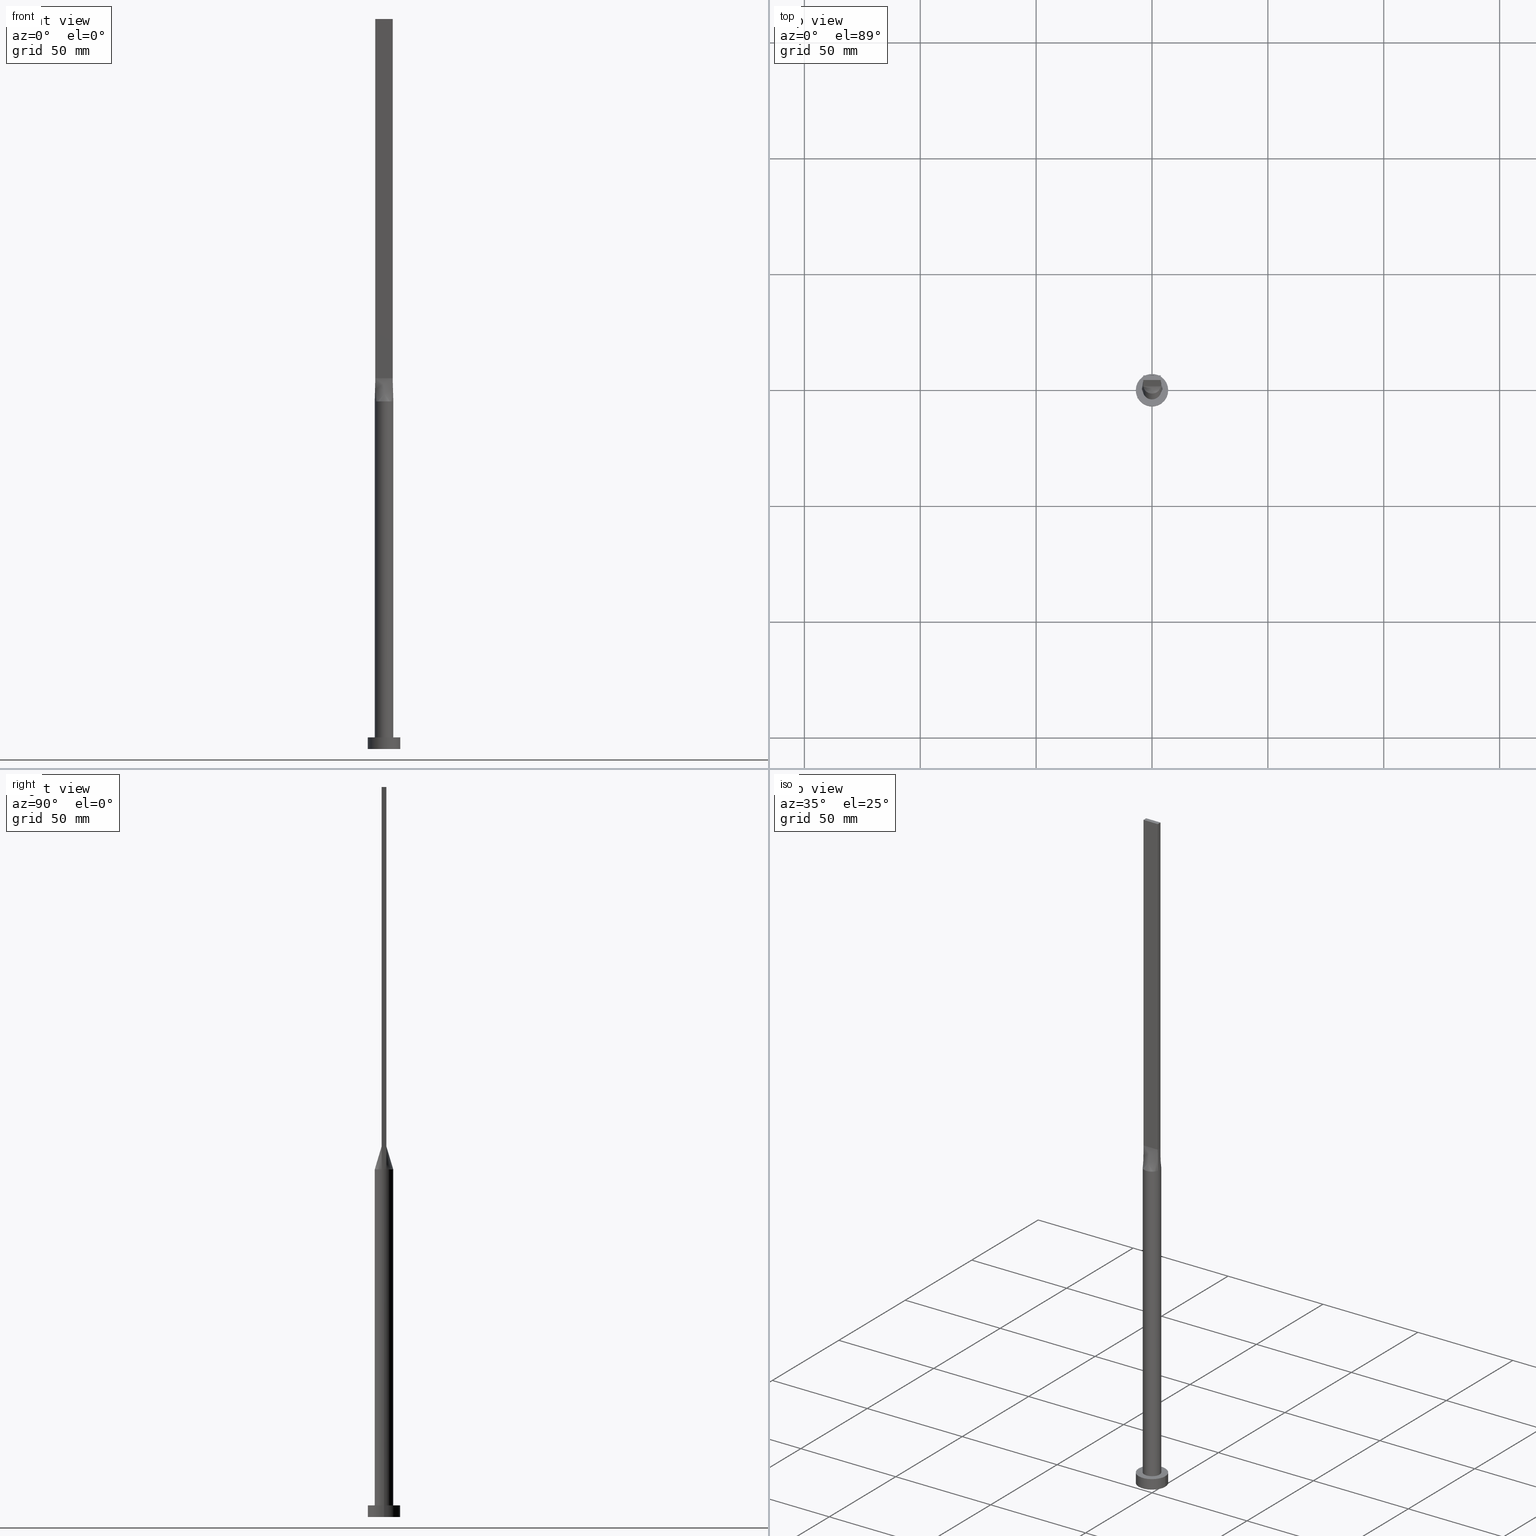
[diagram: canonical four-view strip — front | top / right | iso, engineering-drawing reading convention]
A machine part, canonical four-view strip (front | top / right | iso — engineering-drawing reading convention). The complete STEP part file that produces these views, byte-faithful:
ISO-10303-21;
HEADER;
FILE_DESCRIPTION (( 'STEP AP203' ),
    '1' );
FILE_NAME ('1984.STEP',
    '2026-02-12T09:02:59',
    ( '' ),
    ( '' ),
    'SwSTEP 2.0',
    'SolidWorks 2019',
    '' );
FILE_SCHEMA (( 'CONFIG_CONTROL_DESIGN' ));
ENDSEC;

DATA;
#1 = CARTESIAN_POINT ( 'NONE',  ( 2.499999999999988898, -0.9999999999999995559, 159.9999999999999716 ) ) ;
#2 = CARTESIAN_POINT ( 'NONE',  ( 3.781952206537765981, -1.341853921743404232, 150.0000000000000000 ) ) ;
#3 = EDGE_CURVE ( 'NONE', #221, #506, #572, .T. ) ;
#4 = FACE_OUTER_BOUND ( 'NONE', #327, .T. ) ;
#5 = COORDINATED_UNIVERSAL_TIME_OFFSET ( 1, 0, .AHEAD. ) ;
#6 = VECTOR ( 'NONE', #393, 1000.000000000000114 ) ;
#7 = DATE_AND_TIME ( #366, #425 ) ;
#8 = ORIENTED_EDGE ( 'NONE', *, *, #406, .F. ) ;
#9 = DIRECTION ( 'NONE',  ( -0.000000000000000000, -0.000000000000000000, -1.000000000000000000 ) ) ;
#10 = VECTOR ( 'NONE', #9, 1000.000000000000000 ) ;
#11 = ORIENTED_EDGE ( 'NONE', *, *, #489, .T. ) ;
#12 = DIRECTION ( 'NONE',  ( 0.000000000000000000, -0.000000000000000000, -1.000000000000000000 ) ) ;
#13 = ORIENTED_EDGE ( 'NONE', *, *, #375, .T. ) ;
#14 = PLANE ( 'NONE',  #206 ) ;
#15 = VERTEX_POINT ( 'NONE', #23 ) ;
#16 = DIRECTION ( 'NONE',  ( 0.000000000000000000, 0.000000000000000000, 1.000000000000000000 ) ) ;
#17 = CC_DESIGN_APPROVAL ( #79, ( #212 ) ) ;
#18 = ORIENTED_EDGE ( 'NONE', *, *, #275, .F. ) ;
#19 = CARTESIAN_POINT ( 'NONE',  ( -2.187500000000000444, 1.000000000000000000, 159.9999999999999716 ) ) ;
#20 = VECTOR ( 'NONE', #167, 1000.000000000000000 ) ;
#21 = EDGE_CURVE ( 'NONE', #525, #423, #528, .T. ) ;
#22 = CYLINDRICAL_SURFACE ( 'NONE', #196, 7.000000000000000000 ) ;
#23 = CARTESIAN_POINT ( 'NONE',  ( 3.750000000000000000, 1.000000000000000000, 160.0000000000000000 ) ) ;
#24 = CARTESIAN_POINT ( 'NONE',  ( 3.124999999999999112, 1.000000000000000000, 159.9999999999999716 ) ) ;
#25 = DIRECTION ( 'NONE',  ( 1.000000000000000000, 0.000000000000000000, 0.000000000000000000 ) ) ;
#26 = CARTESIAN_POINT ( 'NONE',  ( -3.864939758404985604, -1.030650602241328428, 150.0000000000000000 ) ) ;
#27 = CARTESIAN_POINT ( 'NONE',  ( -1.562500000000000444, 1.000000000000000000, 159.9999999999999716 ) ) ;
#28 = CARTESIAN_POINT ( 'NONE',  ( -1.940702937457743138, 3.532374760555930582, 149.9999999999999716 ) ) ;
#29 = CARTESIAN_POINT ( 'NONE',  ( -3.749999999999999556, 0.6666666666666669627, 159.9999999999999716 ) ) ;
#30 = CARTESIAN_POINT ( 'NONE',  ( 3.267840578657193795, 2.338604872288698289, 149.9999999999999432 ) ) ;
#31 = CIRCLE ( 'NONE', #465, 7.000000000000000000 ) ;
#32 = B_SPLINE_SURFACE_WITH_KNOTS ( 'NONE', 3, 1, ( 
 ( #501, #105 ),
 ( #547, #279 ),
 ( #141, #515 ),
 ( #231, #415 ),
 ( #512, #273 ),
 ( #315, #152 ) ),
 .UNSPECIFIED., .F., .F., .F.,
 ( 4, 2, 4 ),
 ( 2, 2 ),
 ( 0.000000000000000000, 0.5000000000000000000, 1.000000000000000000 ),
 ( 0.000000000000000000, 1.000000000000000000 ),
 .UNSPECIFIED. ) ;
#33 = FACE_OUTER_BOUND ( 'NONE', #467, .T. ) ;
#34 = PERSON_AND_ORGANIZATION ( #558, #417 ) ;
#35 = CARTESIAN_POINT ( 'NONE',  ( 1.940702937457743582, 3.532374760555930582, 149.9999999999999716 ) ) ;
#36 = CARTESIAN_POINT ( 'NONE',  ( 7.000000000000000000, 8.572527594031473190E-16, 0.000000000000000000 ) ) ;
#37 = CARTESIAN_POINT ( 'NONE',  ( -3.750000000000000000, -0.9999999999999991118, 315.0000000000000000 ) ) ;
#38 = APPROVAL_DATE_TIME ( #445, #79 ) ;
#39 = CARTESIAN_POINT ( 'NONE',  ( -1.250000000000017764, -0.9999999999999993339, 159.9999999999999716 ) ) ;
#40 = ORIENTED_EDGE ( 'NONE', *, *, #21, .F. ) ;
#41 = AXIS2_PLACEMENT_3D ( 'NONE', #195, #405, #12 ) ;
#42 = EDGE_CURVE ( 'NONE', #63, #143, #276, .T. ) ;
#43 = DIRECTION ( 'NONE',  ( 0.000000000000000000, 0.000000000000000000, 1.000000000000000000 ) ) ;
#44 = CARTESIAN_POINT ( 'NONE',  ( 2.346407003458400364, -3.270103945996944095, 150.0000000000000000 ) ) ;
#45 =( NAMED_UNIT ( * ) SI_UNIT ( $, .STERADIAN. ) SOLID_ANGLE_UNIT ( ) );
#46 = DIRECTION ( 'NONE',  ( 0.01149316269309399140, -0.003064843384824947770, 0.9999292544707033548 ) ) ;
#47 = CYLINDRICAL_SURFACE ( 'NONE', #339, 4.000000000000000000 ) ;
#48 = PERSON_AND_ORGANIZATION ( #558, #417 ) ;
#49 = DIRECTION ( 'NONE',  ( 0.000000000000000000, 0.000000000000000000, 1.000000000000000000 ) ) ;
#50 = EDGE_CURVE ( 'NONE', #492, #154, #249, .T. ) ;
#51 = UNCERTAINTY_MEASURE_WITH_UNIT (LENGTH_MEASURE( 1.000000000000000082E-05 ), #135, 'distance_accuracy_value', 'NONE');
#52 = ORIENTED_EDGE ( 'NONE', *, *, #104, .F. ) ;
#53 = ORIENTED_EDGE ( 'NONE', *, *, #58, .T. ) ;
#54 = ORIENTED_EDGE ( 'NONE', *, *, #389, .F. ) ;
#55 = APPROVAL_STATUS ( 'not_yet_approved' ) ;
#56 = ORIENTED_EDGE ( 'NONE', *, *, #50, .T. ) ;
#57 = CARTESIAN_POINT ( 'NONE',  ( -4.000000000000000000, 0.000000000000000000, 5.000000000000000000 ) ) ;
#58 = EDGE_CURVE ( 'NONE', #499, #516, #124, .T. ) ;
#59 = ORIENTED_EDGE ( 'NONE', *, *, #3, .T. ) ;
#60 = DIRECTION ( 'NONE',  ( -1.000000000000000000, -0.000000000000000000, -0.000000000000000000 ) ) ;
#61 = ORIENTED_EDGE ( 'NONE', *, *, #325, .F. ) ;
#62 = CARTESIAN_POINT ( 'NONE',  ( 3.750000000000000000, -0.9999999999999997780, 315.0000000000000000 ) ) ;
#63 = VERTEX_POINT ( 'NONE', #342 ) ;
#64 = CARTESIAN_POINT ( 'NONE',  ( -3.781952206537765537, 1.341853921743403788, 150.0000000000000000 ) ) ;
#65 = EDGE_CURVE ( 'NONE', #506, #15, #203, .T. ) ;
#66 = DIRECTION ( 'NONE',  ( -0.000000000000000000, -0.000000000000000000, -1.000000000000000000 ) ) ;
#67 = CC_DESIGN_APPROVAL ( #509, ( #365 ) ) ;
#68 = CARTESIAN_POINT ( 'NONE',  ( -3.999999999999999112, -0.3494497975066816475, 150.0000000000000000 ) ) ;
#69 = CARTESIAN_POINT ( 'NONE',  ( -3.267840578657194239, 2.338604872288698289, 149.9999999999999716 ) ) ;
#70 = CC_DESIGN_PERSON_AND_ORGANIZATION_ASSIGNMENT ( #142, #411, ( #365 ) ) ;
#71 = FACE_BOUND ( 'NONE', #217, .T. ) ;
#72 = CARTESIAN_POINT ( 'NONE',  ( -3.750000000000000000, 1.000000000000000000, 160.0000000000000000 ) ) ;
#73 = DIRECTION ( 'NONE',  ( 1.000000000000000000, 0.000000000000000000, 0.000000000000000000 ) ) ;
#74 = FACE_OUTER_BOUND ( 'NONE', #173, .T. ) ;
#75 = DIRECTION ( 'NONE',  ( -1.000000000000000000, 0.000000000000000000, 0.000000000000000000 ) ) ;
#76 = CARTESIAN_POINT ( 'NONE',  ( -1.023074425454088221, 3.898373771260455811, 149.9999999999999716 ) ) ;
#77 = CARTESIAN_POINT ( 'NONE',  ( -2.346407003458401253, 3.270103945996944095, 150.0000000000000000 ) ) ;
#78 = CARTESIAN_POINT ( 'NONE',  ( 3.807469879202492358, 1.015325301120664436, 155.0000000000000000 ) ) ;
#79 = APPROVAL ( #535, 'NEUR�EN�' ) ;
#80 = CARTESIAN_POINT ( 'NONE',  ( 0.5121855420560009753, 4.000000000000000888, 150.0000000000000000 ) ) ;
#81 = APPROVAL_PERSON_ORGANIZATION ( #532, #79, #132 ) ;
#82 = CIRCLE ( 'NONE', #188, 4.000000000000000000 ) ;
#83 = LINE ( 'NONE', #442, #523 ) ;
#84 = CARTESIAN_POINT ( 'NONE',  ( -3.781952206537765981, -1.341853921743402900, 150.0000000000000568 ) ) ;
#85 = VECTOR ( 'NONE', #66, 1000.000000000000000 ) ;
#86 = APPLICATION_PROTOCOL_DEFINITION ( 'international standard', 'config_control_design', 1994, #321 ) ;
#87 = FACE_OUTER_BOUND ( 'NONE', #164, .T. ) ;
#88 = ADVANCED_FACE ( 'NONE', ( #200 ), #394, .T. ) ;
#89 = APPROVAL_ROLE ( '' ) ;
#90 = CARTESIAN_POINT ( 'NONE',  ( 0.6249999999999806821, -0.9999999999999995559, 159.9999999999999716 ) ) ;
#91 = AXIS2_PLACEMENT_3D ( 'NONE', #521, #157, #567 ) ;
#92 = DIRECTION ( 'NONE',  ( -0.01149316269309399140, 0.003064843384825013256, 0.9999292544707033548 ) ) ;
#93 = CARTESIAN_POINT ( 'NONE',  ( 3.864939758404985604, -1.030650602241328873, 150.0000000000000000 ) ) ;
#94 = AXIS2_PLACEMENT_3D ( 'NONE', #385, #566, #256 ) ;
#95 = ORIENTED_EDGE ( 'NONE', *, *, #375, .F. ) ;
#96 = CALENDAR_DATE ( 2026, 12, 2 ) ;
#97 = EDGE_CURVE ( 'NONE', #143, #364, #433, .T. ) ;
#98 = DIRECTION ( 'NONE',  ( 0.000000000000000000, 0.000000000000000000, 1.000000000000000000 ) ) ;
#99 = PRODUCT_DEFINITION_FORMATION_WITH_SPECIFIED_SOURCE ( 'LIBOVOLN�', '', #306, .NOT_KNOWN. ) ;
#100 = DATE_AND_TIME ( #96, #304 ) ;
#101 = CIRCLE ( 'NONE', #505, 7.000000000000000000 ) ;
#102 = ORIENTED_EDGE ( 'NONE', *, *, #134, .F. ) ;
#103 = VERTEX_POINT ( 'NONE', #570 ) ;
#104 = EDGE_CURVE ( 'NONE', #499, #541, #101, .T. ) ;
#105 = CARTESIAN_POINT ( 'NONE',  ( 3.750000000000000000, -1.000000000000000000, 160.0000000000000000 ) ) ;
#106 = ORIENTED_EDGE ( 'NONE', *, *, #275, .T. ) ;
#107 = CARTESIAN_POINT ( 'NONE',  ( -3.865236553917747120, 1.030730781768519622, 150.0000000000000000 ) ) ;
#108 = AXIS2_PLACEMENT_3D ( 'NONE', #560, #330, #469 ) ;
#109 = ORIENTED_EDGE ( 'NONE', *, *, #3, .F. ) ;
#110 = DIRECTION ( 'NONE',  ( 0.000000000000000000, 0.000000000000000000, 1.000000000000000000 ) ) ;
#111 = ORIENTED_EDGE ( 'NONE', *, *, #180, .F. ) ;
#112 = EDGE_CURVE ( 'NONE', #371, #15, #476, .T. ) ;
#113 = CARTESIAN_POINT ( 'NONE',  ( 2.346407003458400808, 3.270103945996944983, 150.0000000000000000 ) ) ;
#114 = CYLINDRICAL_SURFACE ( 'NONE', #391, 4.000000000000000000 ) ;
#115 = DIRECTION ( 'NONE',  ( 0.000000000000000000, 0.000000000000000000, 1.000000000000000000 ) ) ;
#116 = CARTESIAN_POINT ( 'NONE',  ( 3.009488128496037085, 2.672487015486669115, 150.0000000000000000 ) ) ;
#117 = DIRECTION ( 'NONE',  ( 0.000000000000000000, 0.000000000000000000, 1.000000000000000000 ) ) ;
#118 = AXIS2_PLACEMENT_3D ( 'NONE', #358, #356, #351 ) ;
#119 = DIRECTION ( 'NONE',  ( -0.01149316269309394803, -0.003064843384824991138, 0.9999292544707033548 ) ) ;
#120 = CARTESIAN_POINT ( 'NONE',  ( 0.3124999999999995004, 1.000000000000000000, 160.0000000000000000 ) ) ;
#121 = CLOSED_SHELL ( 'NONE', ( #369, #260, #347, #292, #361, #269, #224, #444, #88, #146, #397, #126, #478, #434, #170 ) ) ;
#122 = DIRECTION ( 'NONE',  ( 1.000000000000000000, 0.000000000000000000, -0.000000000000000000 ) ) ;
#123 = MANIFOLD_SOLID_BREP ( 'P�idat vysunut�m5', #121 ) ;
#124 = LINE ( 'NONE', #207, #218 ) ;
#125 = DIRECTION ( 'NONE',  ( 0.000000000000000000, 0.000000000000000000, 1.000000000000000000 ) ) ;
#126 = ADVANCED_FACE ( 'NONE', ( #204 ), #575, .F. ) ;
#127 = CARTESIAN_POINT ( 'NONE',  ( 2.346407003458400808, 3.270103945996944983, 150.0000000000000000 ) ) ;
#128 = CARTESIAN_POINT ( 'NONE',  ( -3.749999999999999556, 0.3333333333333338144, 159.9999999999999716 ) ) ;
#129 = CARTESIAN_POINT ( 'NONE',  ( 0.000000000000000000, 0.000000000000000000, 315.0000000000000000 ) ) ;
#130 = CALENDAR_DATE ( 2026, 12, 2 ) ;
#131 = FACE_OUTER_BOUND ( 'NONE', #284, .T. ) ;
#132 = APPROVAL_ROLE ( '' ) ;
#133 = CARTESIAN_POINT ( 'NONE',  ( -0.6250000000000193179, -0.9999999999999993339, 159.9999999999999716 ) ) ;
#134 = EDGE_CURVE ( 'NONE', #470, #364, #546, .T. ) ;
#135 =( LENGTH_UNIT ( ) NAMED_UNIT ( * ) SI_UNIT ( .MILLI., .METRE. ) );
#136 = CARTESIAN_POINT ( 'NONE',  ( -1.940702937457744692, -3.532374760555929250, 149.9999999999999716 ) ) ;
#137 = DIRECTION ( 'NONE',  ( 0.000000000000000000, 1.000000000000000000, 0.000000000000000000 ) ) ;
#138 = DIRECTION ( 'NONE',  ( 1.000000000000000000, -8.673617379884035472E-17, 0.000000000000000000 ) ) ;
#139 = CIRCLE ( 'NONE', #233, 4.000000000000000000 ) ;
#140 = EDGE_LOOP ( 'NONE', ( #377, #331, #548, #11 ) ) ;
#141 = CARTESIAN_POINT ( 'NONE',  ( 4.000000000000000000, -0.3494497975066829798, 150.0000000000000000 ) ) ;
#142 = PERSON_AND_ORGANIZATION ( #558, #417 ) ;
#143 = VERTEX_POINT ( 'NONE', #568 ) ;
#144 = APPROVAL_DATE_TIME ( #7, #182 ) ;
#145 = ORIENTED_EDGE ( 'NONE', *, *, #460, .T. ) ;
#146 = ADVANCED_FACE ( 'NONE', ( #346 ), #482, .T. ) ;
#147 = CARTESIAN_POINT ( 'NONE',  ( -3.750000000000000000, 1.000000000000000000, 160.0000000000000000 ) ) ;
#148 = ORIENTED_EDGE ( 'NONE', *, *, #460, .F. ) ;
#149 = CARTESIAN_POINT ( 'NONE',  ( 0.000000000000000000, 0.000000000000000000, 0.000000000000000000 ) ) ;
#150 = ORIENTED_EDGE ( 'NONE', *, *, #112, .F. ) ;
#151 = EDGE_CURVE ( 'NONE', #154, #371, #435, .T. ) ;
#152 = CARTESIAN_POINT ( 'NONE',  ( 3.750000000000000000, 1.000000000000000000, 160.0000000000000000 ) ) ;
#153 = LOCAL_TIME ( 10, 2, 59.00000000000000000, #452 ) ;
#154 = VERTEX_POINT ( 'NONE', #378 ) ;
#155 = FACE_OUTER_BOUND ( 'NONE', #298, .T. ) ;
#156 = CC_DESIGN_PERSON_AND_ORGANIZATION_ASSIGNMENT ( #226, #414, ( #99 ) ) ;
#157 = DIRECTION ( 'NONE',  ( 0.000000000000000000, 0.000000000000000000, 1.000000000000000000 ) ) ;
#158 = DIRECTION ( 'NONE',  ( 0.000000000000000000, 0.000000000000000000, 1.000000000000000000 ) ) ;
#159 = LINE ( 'NONE', #202, #85 ) ;
#160 = CARTESIAN_POINT ( 'NONE',  ( -3.750000000000000000, 1.000000000000000000, 160.0000000000000000 ) ) ;
#161 = CARTESIAN_POINT ( 'NONE',  ( 3.437499999999999556, 1.000000000000000000, 159.9999999999999716 ) ) ;
#162 = PLANE ( 'NONE',  #272 ) ;
#163 = ORIENTED_EDGE ( 'NONE', *, *, #247, .F. ) ;
#164 = EDGE_LOOP ( 'NONE', ( #341, #447, #190, #507 ) ) ;
#165 = CARTESIAN_POINT ( 'NONE',  ( 3.781952206537764205, 1.341853921743403788, 150.0000000000000568 ) ) ;
#166 = DIRECTION ( 'NONE',  ( -1.000000000000000000, 0.000000000000000000, 0.000000000000000000 ) ) ;
#167 = DIRECTION ( 'NONE',  ( -0.000000000000000000, -0.000000000000000000, -1.000000000000000000 ) ) ;
#168 = CARTESIAN_POINT ( 'NONE',  ( -3.750000000000000000, -0.9999999999999991118, 160.0000000000000000 ) ) ;
#169 = DIRECTION ( 'NONE',  ( -0.000000000000000000, 1.000000000000000000, -0.000000000000000000 ) ) ;
#170 = ADVANCED_FACE ( 'NONE', ( #529 ), #246, .T. ) ;
#171 = CARTESIAN_POINT ( 'NONE',  ( 0.5121855420560003092, -3.999999999999999112, 150.0000000000000000 ) ) ;
#172 = CARTESIAN_POINT ( 'NONE',  ( -3.653499896451231521, -1.673258289339057514, 150.0000000000000000 ) ) ;
#173 = EDGE_LOOP ( 'NONE', ( #513, #373, #13, #402 ) ) ;
#174 = CARTESIAN_POINT ( 'NONE',  ( 3.865212754195084699, 1.030724393897464841, 150.0000000000000000 ) ) ;
#175 = LINE ( 'NONE', #357, #263 ) ;
#176 = CARTESIAN_POINT ( 'NONE',  ( 7.000000000000000000, 8.572527594031473190E-16, 5.000000000000000000 ) ) ;
#177 = ORIENTED_EDGE ( 'NONE', *, *, #576, .F. ) ;
#178 = DIRECTION ( 'NONE',  ( 1.000000000000000000, 0.000000000000000000, 0.000000000000000000 ) ) ;
#179 = CIRCLE ( 'NONE', #118, 7.000000000000000000 ) ;
#180 = EDGE_CURVE ( 'NONE', #154, #194, #440, .T. ) ;
#181 = AXIS2_PLACEMENT_3D ( 'NONE', #129, #302, #259 ) ;
#182 = APPROVAL ( #487, 'NEUR�EN�' ) ;
#183 = APPLICATION_CONTEXT ( 'configuration controlled 3d designs of mechanical parts and assemblies' ) ;
#184 = SHAPE_DEFINITION_REPRESENTATION ( #530, #399 ) ;
#185 = ORIENTED_EDGE ( 'NONE', *, *, #112, .T. ) ;
#186 = FACE_OUTER_BOUND ( 'NONE', #448, .T. ) ;
#187 = EDGE_LOOP ( 'NONE', ( #458, #236, #462, #387 ) ) ;
#188 = AXIS2_PLACEMENT_3D ( 'NONE', #565, #158, #335 ) ;
#189 = DIRECTION ( 'NONE',  ( 1.000000000000000000, 0.000000000000000000, 0.000000000000000000 ) ) ;
#190 = ORIENTED_EDGE ( 'NONE', *, *, #151, .F. ) ;
#191 = EDGE_CURVE ( 'NONE', #197, #221, #82, .T. ) ;
#192 = DESIGN_CONTEXT ( 'detailed design', #183, 'design' ) ;
#193 = DIRECTION ( 'NONE',  ( -0.000000000000000000, -0.000000000000000000, -1.000000000000000000 ) ) ;
#194 = VERTEX_POINT ( 'NONE', #428 ) ;
#195 = CARTESIAN_POINT ( 'NONE',  ( 3.750000000000000000, 1.000000000000000000, 315.0000000000000000 ) ) ;
#196 = AXIS2_PLACEMENT_3D ( 'NONE', #432, #251, #336 ) ;
#197 = VERTEX_POINT ( 'NONE', #270 ) ;
#198 = CARTESIAN_POINT ( 'NONE',  ( -3.437500000000000000, 1.000000000000000000, 159.9999999999999716 ) ) ;
#199 = CARTESIAN_POINT ( 'NONE',  ( 3.009488128496037085, 2.672487015486669115, 150.0000000000000000 ) ) ;
#200 = FACE_OUTER_BOUND ( 'NONE', #557, .T. ) ;
#201 = DIRECTION ( 'NONE',  ( 1.000000000000000000, -8.673617379884035472E-17, 0.000000000000000000 ) ) ;
#202 = CARTESIAN_POINT ( 'NONE',  ( 4.000000000000000000, 4.898587196589412829E-16, 150.0000000000000000 ) ) ;
#203 = LINE ( 'NONE', #78, #496 ) ;
#204 = FACE_OUTER_BOUND ( 'NONE', #502, .T. ) ;
#205 = FACE_OUTER_BOUND ( 'NONE', #253, .T. ) ;
#206 = AXIS2_PLACEMENT_3D ( 'NONE', #370, #16, #367 ) ;
#207 = CARTESIAN_POINT ( 'NONE',  ( 7.000000000000000000, 8.572527594031473190E-16, 5.000000000000000000 ) ) ;
#208 = DIRECTION ( 'NONE',  ( -0.000000000000000000, 0.000000000000000000, -1.000000000000000000 ) ) ;
#209 = LINE ( 'NONE', #244, #237 ) ;
#210 = DIRECTION ( 'NONE',  ( -0.000000000000000000, -0.000000000000000000, -1.000000000000000000 ) ) ;
#211 = CARTESIAN_POINT ( 'NONE',  ( -3.807469879202492802, -1.015325301120663548, 155.0000000000000000 ) ) ;
#212 = PRODUCT_DEFINITION ( 'NEZN�M�', '', #99, #192 ) ;
#213 = CARTESIAN_POINT ( 'NONE',  ( -7.000000000000000000, 0.000000000000000000, 5.000000000000000000 ) ) ;
#214 = CARTESIAN_POINT ( 'NONE',  ( 4.000000000000000000, -1.256865613583667397E-17, 150.0000000000000000 ) ) ;
#215 = PERSON_AND_ORGANIZATION ( #558, #417 ) ;
#216 = CARTESIAN_POINT ( 'NONE',  ( -2.346407003458402141, -3.270103945996943651, 150.0000000000000000 ) ) ;
#217 = EDGE_LOOP ( 'NONE', ( #61, #102 ) ) ;
#218 = VECTOR ( 'NONE', #245, 1000.000000000000000 ) ;
#219 = COORDINATED_UNIVERSAL_TIME_OFFSET ( 1, 0, .AHEAD. ) ;
#220 = CARTESIAN_POINT ( 'NONE',  ( -0.5121855420560018635, -4.000000000000000000, 150.0000000000000000 ) ) ;
#221 = VERTEX_POINT ( 'NONE', #214 ) ;
#222 = CARTESIAN_POINT ( 'NONE',  ( 3.750000000000000000, 1.000000000000000000, 315.0000000000000000 ) ) ;
#223 = CARTESIAN_POINT ( 'NONE',  ( -3.009488128496037529, -2.672487015486668227, 150.0000000000000000 ) ) ;
#224 = ADVANCED_FACE ( 'NONE', ( #87 ), #410, .T. ) ;
#225 = CARTESIAN_POINT ( 'NONE',  ( 3.750000000000000000, -0.9999999999999997780, 160.0000000000000000 ) ) ;
#226 = PERSON_AND_ORGANIZATION ( #558, #417 ) ;
#227 = LOCAL_TIME ( 10, 2, 59.00000000000000000, #552 ) ;
#228 = VECTOR ( 'NONE', #337, 1000.000000000000000 ) ;
#229 = EDGE_CURVE ( 'NONE', #480, #371, #175, .T. ) ;
#230 = EDGE_LOOP ( 'NONE', ( #109, #561, #280, #497, #511, #318 ) ) ;
#231 = CARTESIAN_POINT ( 'NONE',  ( 3.999999999999999112, 0.3494497975066819251, 150.0000000000000000 ) ) ;
#232 = ORIENTED_EDGE ( 'NONE', *, *, #455, .F. ) ;
#233 = AXIS2_PLACEMENT_3D ( 'NONE', #466, #110, #178 ) ;
#234 = VECTOR ( 'NONE', #169, 1000.000000000000000 ) ;
#235 = DIRECTION ( 'NONE',  ( -0.000000000000000000, -0.000000000000000000, -1.000000000000000000 ) ) ;
#236 = ORIENTED_EDGE ( 'NONE', *, *, #247, .T. ) ;
#237 = VECTOR ( 'NONE', #429, 1000.000000000000000 ) ;
#238 = CARTESIAN_POINT ( 'NONE',  ( 4.000000000000000000, 4.898587196589412829E-16, 5.000000000000000000 ) ) ;
#239 = ORIENTED_EDGE ( 'NONE', *, *, #389, .T. ) ;
#240 = EDGE_CURVE ( 'NONE', #103, #480, #543, .T. ) ;
#241 = LINE ( 'NONE', #422, #359 ) ;
#242 = ORIENTED_EDGE ( 'NONE', *, *, #42, .T. ) ;
#243 = CARTESIAN_POINT ( 'NONE',  ( 2.187499999999999556, 1.000000000000000000, 159.9999999999999716 ) ) ;
#244 = CARTESIAN_POINT ( 'NONE',  ( -3.750000000000000000, 1.000000000000000000, 315.0000000000000000 ) ) ;
#245 = DIRECTION ( 'NONE',  ( -0.000000000000000000, -0.000000000000000000, -1.000000000000000000 ) ) ;
#246 = PLANE ( 'NONE',  #181 ) ;
#247 = EDGE_CURVE ( 'NONE', #63, #492, #453, .T. ) ;
#248 = DIRECTION ( 'NONE',  ( -0.000000000000000000, -0.000000000000000000, -1.000000000000000000 ) ) ;
#249 = LINE ( 'NONE', #160, #228 ) ;
#250 = CARTESIAN_POINT ( 'NONE',  ( 3.750000000000000000, 1.000000000000000000, 160.0000000000000000 ) ) ;
#251 = DIRECTION ( 'NONE',  ( -0.000000000000000000, -0.000000000000000000, -1.000000000000000000 ) ) ;
#252 = CC_DESIGN_PERSON_AND_ORGANIZATION_ASSIGNMENT ( #412, #503, ( #99 ) ) ;
#253 = EDGE_LOOP ( 'NONE', ( #419, #439 ) ) ;
#254 = CARTESIAN_POINT ( 'NONE',  ( -3.750000000000000000, -0.9999999999999991118, 160.0000000000000000 ) ) ;
#255 = CARTESIAN_POINT ( 'NONE',  ( -3.750000000000000000, 1.000000000000000000, 160.0000000000000000 ) ) ;
#256 = DIRECTION ( 'NONE',  ( -1.000000000000000000, 0.000000000000000000, 0.000000000000000000 ) ) ;
#257 = AXIS2_PLACEMENT_3D ( 'NONE', #308, #545, #392 ) ;
#258 = DIRECTION ( 'NONE',  ( 1.000000000000000000, 0.000000000000000000, 0.000000000000000000 ) ) ;
#259 = DIRECTION ( 'NONE',  ( 1.000000000000000000, 0.000000000000000000, -0.000000000000000000 ) ) ;
#260 = ADVANCED_FACE ( 'NONE', ( #131 ), #294, .T. ) ;
#261 = CARTESIAN_POINT ( 'NONE',  ( 3.807469879202492802, -1.015325301120664214, 155.0000000000000000 ) ) ;
#262 = CARTESIAN_POINT ( 'NONE',  ( 3.267840578657194239, -2.338604872288699177, 149.9999999999999716 ) ) ;
#263 = VECTOR ( 'NONE', #307, 1000.000000000000000 ) ;
#264 = COORDINATED_UNIVERSAL_TIME_OFFSET ( 1, 0, .AHEAD. ) ;
#265 = CARTESIAN_POINT ( 'NONE',  ( -3.750000000000000000, -0.9999999999999991118, 160.0000000000000000 ) ) ;
#266 = ORIENTED_EDGE ( 'NONE', *, *, #65, .T. ) ;
#267 = PERSON_AND_ORGANIZATION_ROLE ( 'design_owner' ) ;
#268 = CARTESIAN_POINT ( 'NONE',  ( 1.940702937457743360, -3.532374760555930582, 149.9999999999999716 ) ) ;
#269 = ADVANCED_FACE ( 'NONE', ( #33 ), #114, .T. ) ;
#270 = CARTESIAN_POINT ( 'NONE',  ( 3.865244591400370577, -1.030732999276501527, 150.0000000000000000 ) ) ;
#271 = FACE_OUTER_BOUND ( 'NONE', #230, .T. ) ;
#272 = AXIS2_PLACEMENT_3D ( 'NONE', #297, #569, #122 ) ;
#273 = CARTESIAN_POINT ( 'NONE',  ( 3.749999999999999556, 0.6666666666666670737, 159.9999999999999716 ) ) ;
#274 = CIRCLE ( 'NONE', #257, 4.000000000000000000 ) ;
#275 = EDGE_CURVE ( 'NONE', #525, #15, #475, .T. ) ;
#276 = CIRCLE ( 'NONE', #91, 4.000000000000000000 ) ;
#277 = ORIENTED_EDGE ( 'NONE', *, *, #229, .T. ) ;
#278 = EDGE_LOOP ( 'NONE', ( #504, #59, #266, #150, #459 ) ) ;
#279 = CARTESIAN_POINT ( 'NONE',  ( 3.749999999999999556, -0.6666666666666661856, 159.9999999999999716 ) ) ;
#280 = ORIENTED_EDGE ( 'NONE', *, *, #134, .T. ) ;
#281 = VECTOR ( 'NONE', #75, 1000.000000000000000 ) ;
#282 = DIRECTION ( 'NONE',  ( 1.000000000000000000, 0.000000000000000000, 0.000000000000000000 ) ) ;
#283 = CC_DESIGN_PERSON_AND_ORGANIZATION_ASSIGNMENT ( #34, #267, ( #306 ) ) ;
#284 = EDGE_LOOP ( 'NONE', ( #52, #53, #145, #95 ) ) ;
#285 = VECTOR ( 'NONE', #573, 1000.000000000000000 ) ;
#286 = LINE ( 'NONE', #147, #319 ) ;
#287 = ORIENTED_EDGE ( 'NONE', *, *, #325, .T. ) ;
#288 = CARTESIAN_POINT ( 'NONE',  ( -3.009488128496037529, 2.672487015486668671, 150.0000000000000000 ) ) ;
#289 = CARTESIAN_POINT ( 'NONE',  ( 1.023074425454087999, 3.898373771260456255, 149.9999999999999716 ) ) ;
#290 = CARTESIAN_POINT ( 'NONE',  ( -3.864939758404985160, 1.030650602241329317, 150.0000000000000000 ) ) ;
#291 = CARTESIAN_POINT ( 'NONE',  ( 3.750000000000000000, 1.000000000000000000, 160.0000000000000000 ) ) ;
#292 = ADVANCED_FACE ( 'NONE', ( #71, #205 ), #162, .T. ) ;
#293 = APPROVAL_PERSON_ORGANIZATION ( #303, #182, #89 ) ;
#294 = CYLINDRICAL_SURFACE ( 'NONE', #94, 7.000000000000000000 ) ;
#295 = CARTESIAN_POINT ( 'NONE',  ( -4.000000000000000000, 0.3494497975066826467, 150.0000000000000000 ) ) ;
#296 = CARTESIAN_POINT ( 'NONE',  ( 3.864939758404985160, 1.030650602241329539, 150.0000000000000000 ) ) ;
#297 = CARTESIAN_POINT ( 'NONE',  ( 0.000000000000000000, 0.000000000000000000, 5.000000000000000000 ) ) ;
#298 = EDGE_LOOP ( 'NONE', ( #518, #8, #40, #106 ) ) ;
#299 = CARTESIAN_POINT ( 'NONE',  ( 1.562499999999999556, 1.000000000000000000, 159.9999999999999716 ) ) ;
#300 = CARTESIAN_POINT ( 'NONE',  ( 0.000000000000000000, 0.000000000000000000, 5.000000000000000000 ) ) ;
#301 = CARTESIAN_POINT ( 'NONE',  ( 3.750000000000000000, 1.000000000000000000, 315.0000000000000000 ) ) ;
#302 = DIRECTION ( 'NONE',  ( 0.000000000000000000, 0.000000000000000000, 1.000000000000000000 ) ) ;
#303 = PERSON_AND_ORGANIZATION ( #558, #417 ) ;
#304 = LOCAL_TIME ( 10, 2, 59.00000000000000000, #5 ) ;
#305 = CARTESIAN_POINT ( 'NONE',  ( -2.500000000000011102, -0.9999999999999991118, 159.9999999999999716 ) ) ;
#306 = PRODUCT ( '1984', '1984', '', ( #314 ) ) ;
#307 = DIRECTION ( 'NONE',  ( -0.000000000000000000, -0.000000000000000000, -1.000000000000000000 ) ) ;
#308 = CARTESIAN_POINT ( 'NONE',  ( 0.000000000000000000, 0.000000000000000000, 150.0000000000000000 ) ) ;
#309 = CARTESIAN_POINT ( 'NONE',  ( 1.249999999999982236, -0.9999999999999995559, 159.9999999999999716 ) ) ;
#310 = ORIENTED_EDGE ( 'NONE', *, *, #406, .T. ) ;
#311 = CARTESIAN_POINT ( 'NONE',  ( -3.807469879202492802, 1.015325301120663992, 155.0000000000000000 ) ) ;
#312 = AXIS2_PLACEMENT_3D ( 'NONE', #332, #98, #189 ) ;
#313 = AXIS2_PLACEMENT_3D ( 'NONE', #349, #526, #208 ) ;
#314 = MECHANICAL_CONTEXT ( 'NONE', #321, 'mechanical' ) ;
#315 = CARTESIAN_POINT ( 'NONE',  ( 3.864939758404985160, 1.030650602241328873, 150.0000000000000000 ) ) ;
#316 = EDGE_CURVE ( 'NONE', #423, #103, #209, .T. ) ;
#317 = DATE_TIME_ROLE ( 'classification_date' ) ;
#318 = ORIENTED_EDGE ( 'NONE', *, *, #355, .F. ) ;
#319 = VECTOR ( 'NONE', #60, 1000.000000000000000 ) ;
#320 = AXIS2_PLACEMENT_3D ( 'NONE', #473, #115, #564 ) ;
#321 = APPLICATION_CONTEXT ( 'configuration controlled 3d designs of mechanical parts and assemblies' ) ;
#322 = ORIENTED_EDGE ( 'NONE', *, *, #191, .F. ) ;
#323 = CARTESIAN_POINT ( 'NONE',  ( 0.000000000000000000, 0.000000000000000000, 150.0000000000000000 ) ) ;
#324 = ORIENTED_EDGE ( 'NONE', *, *, #544, .F. ) ;
#325 = EDGE_CURVE ( 'NONE', #364, #470, #362, .T. ) ;
#326 = CARTESIAN_POINT ( 'NONE',  ( -3.750000000000000000, 1.000000000000000000, 315.0000000000000000 ) ) ;
#327 = EDGE_LOOP ( 'NONE', ( #232, #148 ) ) ;
#328 =( GEOMETRIC_REPRESENTATION_CONTEXT ( 3 ) GLOBAL_UNCERTAINTY_ASSIGNED_CONTEXT ( ( #51 ) ) GLOBAL_UNIT_ASSIGNED_CONTEXT ( ( #135, #395, #45 ) ) REPRESENTATION_CONTEXT ( 'NONE', 'WORKASPACE' ) );
#329 = PRODUCT_RELATED_PRODUCT_CATEGORY ( 'detail', '', ( #306 ) ) ;
#330 = DIRECTION ( 'NONE',  ( 8.673617379884036705E-17, 1.000000000000000000, -0.000000000000000000 ) ) ;
#331 = ORIENTED_EDGE ( 'NONE', *, *, #316, .T. ) ;
#332 = CARTESIAN_POINT ( 'NONE',  ( 0.000000000000000000, 0.000000000000000000, 0.000000000000000000 ) ) ;
#333 = CARTESIAN_POINT ( 'NONE',  ( -3.749999999999999556, -0.3333333333333324822, 159.9999999999999716 ) ) ;
#334 = EDGE_CURVE ( 'NONE', #221, #470, #159, .T. ) ;
#335 = DIRECTION ( 'NONE',  ( 1.000000000000000000, -6.217248937900876626E-15, 0.000000000000000000 ) ) ;
#336 = DIRECTION ( 'NONE',  ( -1.000000000000000000, 0.000000000000000000, 0.000000000000000000 ) ) ;
#337 = DIRECTION ( 'NONE',  ( 0.000000000000000000, -1.000000000000000000, 0.000000000000000000 ) ) ;
#338 = CARTESIAN_POINT ( 'NONE',  ( 0.000000000000000000, 0.000000000000000000, 5.000000000000000000 ) ) ;
#339 = AXIS2_PLACEMENT_3D ( 'NONE', #323, #235, #517 ) ;
#340 = CARTESIAN_POINT ( 'NONE',  ( 3.267840578657193795, 2.338604872288698289, 149.9999999999999432 ) ) ;
#341 = ORIENTED_EDGE ( 'NONE', *, *, #576, .T. ) ;
#342 = CARTESIAN_POINT ( 'NONE',  ( -3.865236553917747120, 1.030730781768519622, 150.0000000000000000 ) ) ;
#343 = CARTESIAN_POINT ( 'NONE',  ( 1.249999999999999556, 1.000000000000000000, 159.9999999999999716 ) ) ;
#344 = CARTESIAN_POINT ( 'NONE',  ( 3.865212754195084699, 1.030724393897464841, 150.0000000000000000 ) ) ;
#345 = DIRECTION ( 'NONE',  ( 0.000000000000000000, 0.000000000000000000, 1.000000000000000000 ) ) ;
#346 = FACE_OUTER_BOUND ( 'NONE', #187, .T. ) ;
#347 = ADVANCED_FACE ( 'NONE', ( #74 ), #22, .T. ) ;
#348 = APPLICATION_PROTOCOL_DEFINITION ( 'international standard', 'config_control_design', 1994, #183 ) ;
#349 = CARTESIAN_POINT ( 'NONE',  ( -3.750000000000000000, 1.000000000000000000, 315.0000000000000000 ) ) ;
#350 = AXIS2_PLACEMENT_3D ( 'NONE', #579, #43, #438 ) ;
#351 = DIRECTION ( 'NONE',  ( 1.000000000000000000, 0.000000000000000000, 0.000000000000000000 ) ) ;
#352 = CARTESIAN_POINT ( 'NONE',  ( 2.187499999999986677, -0.9999999999999995559, 159.9999999999999716 ) ) ;
#353 = PERSON_AND_ORGANIZATION_ROLE ( 'creator' ) ;
#354 = CARTESIAN_POINT ( 'NONE',  ( 3.653499896451230633, -1.673258289339059068, 149.9999999999999716 ) ) ;
#355 = EDGE_CURVE ( 'NONE', #506, #63, #540, .T. ) ;
#356 = DIRECTION ( 'NONE',  ( 0.000000000000000000, 0.000000000000000000, 1.000000000000000000 ) ) ;
#357 = CARTESIAN_POINT ( 'NONE',  ( 3.750000000000000000, -0.9999999999999997780, 315.0000000000000000 ) ) ;
#358 = CARTESIAN_POINT ( 'NONE',  ( 0.000000000000000000, 0.000000000000000000, 5.000000000000000000 ) ) ;
#359 = VECTOR ( 'NONE', #137, 1000.000000000000000 ) ;
#360 = CARTESIAN_POINT ( 'NONE',  ( -3.750000000000000000, 1.000000000000000000, 315.0000000000000000 ) ) ;
#361 = ADVANCED_FACE ( 'NONE', ( #4 ), #14, .F. ) ;
#362 = CIRCLE ( 'NONE', #441, 4.000000000000000000 ) ;
#363 = CALENDAR_DATE ( 2026, 12, 2 ) ;
#364 = VERTEX_POINT ( 'NONE', #57 ) ;
#365 = SECURITY_CLASSIFICATION ( '', '', #549 ) ;
#366 = CALENDAR_DATE ( 2026, 12, 2 ) ;
#367 = DIRECTION ( 'NONE',  ( 1.000000000000000000, 0.000000000000000000, -0.000000000000000000 ) ) ;
#368 = ORIENTED_EDGE ( 'NONE', *, *, #97, .T. ) ;
#369 = ADVANCED_FACE ( 'NONE', ( #271 ), #47, .T. ) ;
#370 = CARTESIAN_POINT ( 'NONE',  ( 0.000000000000000000, 0.000000000000000000, 0.000000000000000000 ) ) ;
#371 = VERTEX_POINT ( 'NONE', #225 ) ;
#372 = PLANE ( 'NONE',  #108 ) ;
#373 = ORIENTED_EDGE ( 'NONE', *, *, #498, .F. ) ;
#374 = VECTOR ( 'NONE', #92, 1000.000000000000114 ) ;
#375 = EDGE_CURVE ( 'NONE', #541, #555, #554, .T. ) ;
#376 = LINE ( 'NONE', #360, #10 ) ;
#377 = ORIENTED_EDGE ( 'NONE', *, *, #21, .T. ) ;
#378 = CARTESIAN_POINT ( 'NONE',  ( -3.750000000000000000, -0.9999999999999991118, 160.0000000000000000 ) ) ;
#379 = CARTESIAN_POINT ( 'NONE',  ( -3.781952206537765537, 1.341853921743403788, 150.0000000000000000 ) ) ;
#380 = ORIENTED_EDGE ( 'NONE', *, *, #316, .F. ) ;
#381 = CARTESIAN_POINT ( 'NONE',  ( -0.6250000000000005551, 1.000000000000000000, 159.9999999999999716 ) ) ;
#382 = CARTESIAN_POINT ( 'NONE',  ( 3.653499896451231521, 1.673258289339057958, 150.0000000000000000 ) ) ;
#383 = CARTESIAN_POINT ( 'NONE',  ( -3.953459813730019423, 0.6987003947724497177, 150.0000000000000284 ) ) ;
#384 = CARTESIAN_POINT ( 'NONE',  ( -3.653499896451231521, 1.673258289339058180, 149.9999999999999716 ) ) ;
#385 = CARTESIAN_POINT ( 'NONE',  ( 0.000000000000000000, 0.000000000000000000, 5.000000000000000000 ) ) ;
#386 = EDGE_LOOP ( 'NONE', ( #553, #413, #508, #464 ) ) ;
#387 = ORIENTED_EDGE ( 'NONE', *, *, #65, .F. ) ;
#388 = CARTESIAN_POINT ( 'NONE',  ( -1.940702937457743138, 3.532374760555930582, 149.9999999999999716 ) ) ;
#389 = EDGE_CURVE ( 'NONE', #143, #194, #139, .T. ) ;
#390 = CARTESIAN_POINT ( 'NONE',  ( -3.009488128496037529, 2.672487015486668671, 150.0000000000000000 ) ) ;
#391 = AXIS2_PLACEMENT_3D ( 'NONE', #520, #248, #166 ) ;
#392 = DIRECTION ( 'NONE',  ( 1.000000000000000000, 0.000000000000000000, 0.000000000000000000 ) ) ;
#393 = DIRECTION ( 'NONE',  ( -0.01149316269309399140, -0.003064843384825013256, -0.9999292544707033548 ) ) ;
#394 = B_SPLINE_SURFACE_WITH_KNOTS ( 'NONE', 3, 1, ( 
 ( #290, #72 ),
 ( #383, #29 ),
 ( #295, #128 ),
 ( #68, #333 ),
 ( #574, #430 ),
 ( #26, #254 ) ),
 .UNSPECIFIED., .F., .F., .F.,
 ( 4, 2, 4 ),
 ( 2, 2 ),
 ( 0.000000000000000000, 0.5000000000000000000, 1.000000000000000000 ),
 ( 0.000000000000000000, 1.000000000000000000 ),
 .UNSPECIFIED. ) ;
#395 =( NAMED_UNIT ( * ) PLANE_ANGLE_UNIT ( ) SI_UNIT ( $, .RADIAN. ) );
#396 = CARTESIAN_POINT ( 'NONE',  ( -0.3125000000000197065, -0.9999999999999993339, 160.0000000000000000 ) ) ;
#397 = ADVANCED_FACE ( 'NONE', ( #155 ), #556, .F. ) ;
#398 = CARTESIAN_POINT ( 'NONE',  ( -1.023074425454088887, -3.898373771260456255, 149.9999999999999716 ) ) ;
#399 = ADVANCED_BREP_SHAPE_REPRESENTATION ( '1984', ( #123, #350 ), #328 ) ;
#400 = DATE_AND_TIME ( #493, #153 ) ;
#401 = CARTESIAN_POINT ( 'NONE',  ( 3.124999999999993783, -0.9999999999999995559, 159.9999999999999716 ) ) ;
#402 = ORIENTED_EDGE ( 'NONE', *, *, #455, .T. ) ;
#403 = CARTESIAN_POINT ( 'NONE',  ( -2.187500000000013323, -0.9999999999999993339, 159.9999999999999716 ) ) ;
#404 = ORIENTED_EDGE ( 'NONE', *, *, #489, .F. ) ;
#405 = DIRECTION ( 'NONE',  ( 0.000000000000000000, -1.000000000000000000, 0.000000000000000000 ) ) ;
#406 = EDGE_CURVE ( 'NONE', #423, #492, #376, .T. ) ;
#407 = DATE_AND_TIME ( #363, #227 ) ;
#408 = LOCAL_TIME ( 10, 2, 59.00000000000000000, #264 ) ;
#409 = VECTOR ( 'NONE', #201, 1000.000000000000000 ) ;
#410 = B_SPLINE_SURFACE_WITH_KNOTS ( 'NONE', 3, 1, ( 
 ( #495, #265 ),
 ( #84, #451 ),
 ( #172, #537 ),
 ( #446, #305 ),
 ( #223, #403 ),
 ( #216, #580 ),
 ( #136, #39 ),
 ( #398, #133 ),
 ( #220, #396 ),
 ( #171, #488 ),
 ( #533, #90 ),
 ( #268, #309 ),
 ( #44, #443 ),
 ( #491, #352 ),
 ( #262, #1 ),
 ( #354, #401 ),
 ( #2, #494 ),
 ( #93, #539 ) ),
 .UNSPECIFIED., .F., .F., .F.,
 ( 4, 2, 2, 2, 2, 2, 2, 2, 4 ),
 ( 2, 2 ),
 ( 0.000000000000000000, 0.1250000000000000000, 0.2500000000000000000, 0.3750000000000000000, 0.5000000000000000000, 0.6250000000000000000, 0.7500000000000000000, 0.8750000000000000000, 1.000000000000000000 ),
 ( 0.000000000000000000, 1.000000000000000000 ),
 .UNSPECIFIED. ) ;
#411 = PERSON_AND_ORGANIZATION_ROLE ( 'classification_officer' ) ;
#412 = PERSON_AND_ORGANIZATION ( #558, #417 ) ;
#413 = ORIENTED_EDGE ( 'NONE', *, *, #229, .F. ) ;
#414 = PERSON_AND_ORGANIZATION_ROLE ( 'creator' ) ;
#415 = CARTESIAN_POINT ( 'NONE',  ( 3.749999999999999556, 0.3333333333333339810, 159.9999999999999716 ) ) ;
#416 = ORIENTED_EDGE ( 'NONE', *, *, #334, .F. ) ;
#417 = ORGANIZATION ( 'NEUR�EN�', 'NEUR�EN�', '' ) ;
#418 = CARTESIAN_POINT ( 'NONE',  ( -7.000000000000000000, 0.000000000000000000, 5.000000000000000000 ) ) ;
#419 = ORIENTED_EDGE ( 'NONE', *, *, #498, .T. ) ;
#420 = FACE_OUTER_BOUND ( 'NONE', #386, .T. ) ;
#421 = ORIENTED_EDGE ( 'NONE', *, *, #50, .F. ) ;
#422 = CARTESIAN_POINT ( 'NONE',  ( 3.750000000000000000, -0.9999999999999997780, 315.0000000000000000 ) ) ;
#423 = VERTEX_POINT ( 'NONE', #326 ) ;
#424 = CARTESIAN_POINT ( 'NONE',  ( 1.023074425454087999, 3.898373771260456255, 149.9999999999999716 ) ) ;
#425 = LOCAL_TIME ( 10, 2, 59.00000000000000000, #219 ) ;
#426 = CARTESIAN_POINT ( 'NONE',  ( -3.653499896451231521, 1.673258289339058180, 149.9999999999999716 ) ) ;
#427 = CARTESIAN_POINT ( 'NONE',  ( -4.000000000000000000, 0.000000000000000000, 150.0000000000000000 ) ) ;
#428 = CARTESIAN_POINT ( 'NONE',  ( -3.865220763612065902, -1.030726602927787949, 150.0000000000000000 ) ) ;
#429 = DIRECTION ( 'NONE',  ( 0.000000000000000000, -1.000000000000000000, 0.000000000000000000 ) ) ;
#430 = CARTESIAN_POINT ( 'NONE',  ( -3.749999999999999556, -0.6666666666666657415, 159.9999999999999716 ) ) ;
#431 = CARTESIAN_POINT ( 'NONE',  ( -0.5121855420560009753, 4.000000000000000888, 150.0000000000000000 ) ) ;
#432 = CARTESIAN_POINT ( 'NONE',  ( 0.000000000000000000, 0.000000000000000000, 5.000000000000000000 ) ) ;
#433 = LINE ( 'NONE', #427, #20 ) ;
#434 = ADVANCED_FACE ( 'NONE', ( #186 ), #454, .F. ) ;
#435 = LINE ( 'NONE', #168, #409 ) ;
#436 = CARTESIAN_POINT ( 'NONE',  ( 1.940702937457743582, 3.532374760555930582, 149.9999999999999716 ) ) ;
#437 = AXIS2_PLACEMENT_3D ( 'NONE', #338, #125, #73 ) ;
#438 = DIRECTION ( 'NONE',  ( 1.000000000000000000, 0.000000000000000000, 0.000000000000000000 ) ) ;
#439 = ORIENTED_EDGE ( 'NONE', *, *, #104, .T. ) ;
#440 = LINE ( 'NONE', #211, #6 ) ;
#441 = AXIS2_PLACEMENT_3D ( 'NONE', #300, #117, #25 ) ;
#442 = CARTESIAN_POINT ( 'NONE',  ( -3.750000000000000000, -0.9999999999999991118, 315.0000000000000000 ) ) ;
#443 = CARTESIAN_POINT ( 'NONE',  ( 1.562499999999983569, -0.9999999999999995559, 159.9999999999999716 ) ) ;
#444 = ADVANCED_FACE ( 'NONE', ( #563 ), #32, .T. ) ;
#445 = DATE_AND_TIME ( #130, #408 ) ;
#446 = CARTESIAN_POINT ( 'NONE',  ( -3.267840578657194239, -2.338604872288696956, 149.9999999999999432 ) ) ;
#447 = ORIENTED_EDGE ( 'NONE', *, *, #531, .T. ) ;
#448 = EDGE_LOOP ( 'NONE', ( #185, #18, #404, #277 ) ) ;
#449 = CC_DESIGN_SECURITY_CLASSIFICATION ( #365, ( #99 ) ) ;
#450 = CARTESIAN_POINT ( 'NONE',  ( -3.750000000000000000, 1.000000000000000000, 160.0000000000000000 ) ) ;
#451 = CARTESIAN_POINT ( 'NONE',  ( -3.437500000000003109, -0.9999999999999991118, 159.9999999999999716 ) ) ;
#452 = COORDINATED_UNIVERSAL_TIME_OFFSET ( 1, 0, .AHEAD. ) ;
#453 = LINE ( 'NONE', #311, #490 ) ;
#454 = PLANE ( 'NONE',  #534 ) ;
#455 = EDGE_CURVE ( 'NONE', #555, #516, #581, .T. ) ;
#456 = DIRECTION ( 'NONE',  ( 0.000000000000000000, 0.000000000000000000, 1.000000000000000000 ) ) ;
#457 = APPROVAL_DATE_TIME ( #100, #509 ) ;
#458 = ORIENTED_EDGE ( 'NONE', *, *, #355, .T. ) ;
#459 = ORIENTED_EDGE ( 'NONE', *, *, #531, .F. ) ;
#460 = EDGE_CURVE ( 'NONE', #516, #555, #31, .T. ) ;
#461 = APPROVAL_ROLE ( '' ) ;
#462 = ORIENTED_EDGE ( 'NONE', *, *, #468, .F. ) ;
#463 = DIRECTION ( 'NONE',  ( -1.000000000000000000, 0.000000000000000000, 0.000000000000000000 ) ) ;
#464 = ORIENTED_EDGE ( 'NONE', *, *, #544, .T. ) ;
#465 = AXIS2_PLACEMENT_3D ( 'NONE', #149, #49, #282 ) ;
#466 = CARTESIAN_POINT ( 'NONE',  ( 0.000000000000000000, 0.000000000000000000, 150.0000000000000000 ) ) ;
#467 = EDGE_LOOP ( 'NONE', ( #416, #322, #177, #54, #368, #287 ) ) ;
#468 = EDGE_CURVE ( 'NONE', #15, #492, #286, .T. ) ;
#469 = DIRECTION ( 'NONE',  ( -1.000000000000000000, 8.673617379884036705E-17, 0.000000000000000000 ) ) ;
#470 = VERTEX_POINT ( 'NONE', #238 ) ;
#471 = CARTESIAN_POINT ( 'NONE',  ( -2.500000000000000444, 1.000000000000000000, 159.9999999999999716 ) ) ;
#472 = CARTESIAN_POINT ( 'NONE',  ( -1.023074425454088221, 3.898373771260455811, 149.9999999999999716 ) ) ;
#473 = CARTESIAN_POINT ( 'NONE',  ( 0.000000000000000000, 0.000000000000000000, 150.0000000000000000 ) ) ;
#474 = CARTESIAN_POINT ( 'NONE',  ( 0.6249999999999994449, 1.000000000000000000, 159.9999999999999716 ) ) ;
#475 = LINE ( 'NONE', #479, #285 ) ;
#476 = LINE ( 'NONE', #250, #234 ) ;
#477 = CARTESIAN_POINT ( 'NONE',  ( -0.3125000000000004996, 1.000000000000000000, 159.9999999999999716 ) ) ;
#478 = ADVANCED_FACE ( 'NONE', ( #420 ), #372, .F. ) ;
#479 = CARTESIAN_POINT ( 'NONE',  ( 3.750000000000000000, 1.000000000000000000, 315.0000000000000000 ) ) ;
#480 = VERTEX_POINT ( 'NONE', #62 ) ;
#481 = CARTESIAN_POINT ( 'NONE',  ( -1.250000000000000444, 1.000000000000000000, 159.9999999999999716 ) ) ;
#482 = B_SPLINE_SURFACE_WITH_KNOTS ( 'NONE', 3, 1, ( 
 ( #296, #291 ),
 ( #165, #161 ),
 ( #522, #24 ),
 ( #30, #519 ),
 ( #116, #243 ),
 ( #113, #299 ),
 ( #35, #343 ),
 ( #424, #474 ),
 ( #80, #120 ),
 ( #431, #477 ),
 ( #76, #381 ),
 ( #388, #481 ),
 ( #485, #27 ),
 ( #288, #19 ),
 ( #69, #471 ),
 ( #384, #571 ),
 ( #64, #198 ),
 ( #578, #255 ) ),
 .UNSPECIFIED., .F., .F., .F.,
 ( 4, 2, 2, 2, 2, 2, 2, 2, 4 ),
 ( 2, 2 ),
 ( 0.000000000000000000, 0.1250000000000000000, 0.2500000000000000000, 0.3750000000000000000, 0.5000000000000000000, 0.6250000000000000000, 0.7500000000000000000, 0.8750000000000000000, 1.000000000000000000 ),
 ( 0.000000000000000000, 1.000000000000000000 ),
 .UNSPECIFIED. ) ;
#483 = CARTESIAN_POINT ( 'NONE',  ( -0.5121855420560009753, 4.000000000000000888, 150.0000000000000000 ) ) ;
#484 = CARTESIAN_POINT ( 'NONE',  ( 0.000000000000000000, 0.000000000000000000, 5.000000000000000000 ) ) ;
#485 = CARTESIAN_POINT ( 'NONE',  ( -2.346407003458401253, 3.270103945996944095, 150.0000000000000000 ) ) ;
#486 = CC_DESIGN_APPROVAL ( #182, ( #99 ) ) ;
#487 = APPROVAL_STATUS ( 'not_yet_approved' ) ;
#488 = CARTESIAN_POINT ( 'NONE',  ( 0.3124999999999803491, -0.9999999999999995559, 159.9999999999999716 ) ) ;
#489 = EDGE_CURVE ( 'NONE', #480, #525, #241, .T. ) ;
#490 = VECTOR ( 'NONE', #46, 1000.000000000000114 ) ;
#491 = CARTESIAN_POINT ( 'NONE',  ( 3.009488128496036641, -2.672487015486668671, 150.0000000000000000 ) ) ;
#492 = VERTEX_POINT ( 'NONE', #450 ) ;
#493 = CALENDAR_DATE ( 2026, 12, 2 ) ;
#494 = CARTESIAN_POINT ( 'NONE',  ( 3.437499999999996447, -0.9999999999999995559, 159.9999999999999716 ) ) ;
#495 = CARTESIAN_POINT ( 'NONE',  ( -3.864939758404985604, -1.030650602241328206, 150.0000000000000000 ) ) ;
#496 = VECTOR ( 'NONE', #119, 1000.000000000000114 ) ;
#497 = ORIENTED_EDGE ( 'NONE', *, *, #97, .F. ) ;
#498 = EDGE_CURVE ( 'NONE', #541, #499, #179, .T. ) ;
#499 = VERTEX_POINT ( 'NONE', #176 ) ;
#500 = LINE ( 'NONE', #261, #374 ) ;
#501 = CARTESIAN_POINT ( 'NONE',  ( 3.864939758404985160, -1.030650602241329539, 150.0000000000000000 ) ) ;
#502 = EDGE_LOOP ( 'NONE', ( #56, #324, #380, #310 ) ) ;
#503 = PERSON_AND_ORGANIZATION_ROLE ( 'design_supplier' ) ;
#504 = ORIENTED_EDGE ( 'NONE', *, *, #191, .T. ) ;
#505 = AXIS2_PLACEMENT_3D ( 'NONE', #484, #345, #258 ) ;
#506 = VERTEX_POINT ( 'NONE', #174 ) ;
#507 = ORIENTED_EDGE ( 'NONE', *, *, #180, .T. ) ;
#508 = ORIENTED_EDGE ( 'NONE', *, *, #240, .F. ) ;
#509 = APPROVAL ( #55, 'NEUR�EN�' ) ;
#510 = CARTESIAN_POINT ( 'NONE',  ( 3.750000000000000000, -0.9999999999999997780, 315.0000000000000000 ) ) ;
#511 = ORIENTED_EDGE ( 'NONE', *, *, #42, .F. ) ;
#512 = CARTESIAN_POINT ( 'NONE',  ( 3.953459813730020311, 0.6987003947724492736, 150.0000000000000000 ) ) ;
#513 = ORIENTED_EDGE ( 'NONE', *, *, #58, .F. ) ;
#514 = VECTOR ( 'NONE', #193, 1000.000000000000000 ) ;
#515 = CARTESIAN_POINT ( 'NONE',  ( 3.749999999999999556, -0.3333333333333326487, 159.9999999999999716 ) ) ;
#516 = VERTEX_POINT ( 'NONE', #36 ) ;
#517 = DIRECTION ( 'NONE',  ( -1.000000000000000000, 0.000000000000000000, 0.000000000000000000 ) ) ;
#518 = ORIENTED_EDGE ( 'NONE', *, *, #468, .T. ) ;
#519 = CARTESIAN_POINT ( 'NONE',  ( 2.499999999999999112, 1.000000000000000000, 159.9999999999999716 ) ) ;
#520 = CARTESIAN_POINT ( 'NONE',  ( 0.000000000000000000, 0.000000000000000000, 150.0000000000000000 ) ) ;
#521 = CARTESIAN_POINT ( 'NONE',  ( 0.000000000000000000, 0.000000000000000000, 150.0000000000000000 ) ) ;
#522 = CARTESIAN_POINT ( 'NONE',  ( 3.653499896451231521, 1.673258289339057958, 150.0000000000000000 ) ) ;
#523 = VECTOR ( 'NONE', #210, 1000.000000000000000 ) ;
#524 = CARTESIAN_POINT ( 'NONE',  ( 0.5121855420560009753, 4.000000000000000888, 150.0000000000000000 ) ) ;
#525 = VERTEX_POINT ( 'NONE', #222 ) ;
#526 = DIRECTION ( 'NONE',  ( 1.000000000000000000, 0.000000000000000000, -0.000000000000000000 ) ) ;
#527 = CARTESIAN_POINT ( 'NONE',  ( 3.781952206537764205, 1.341853921743403788, 150.0000000000000568 ) ) ;
#528 = LINE ( 'NONE', #301, #281 ) ;
#529 = FACE_OUTER_BOUND ( 'NONE', #140, .T. ) ;
#530 = PRODUCT_DEFINITION_SHAPE ( 'NONE', 'NONE',  #212 ) ;
#531 = EDGE_CURVE ( 'NONE', #197, #371, #500, .T. ) ;
#532 = PERSON_AND_ORGANIZATION ( #558, #417 ) ;
#533 = CARTESIAN_POINT ( 'NONE',  ( 1.023074425454087555, -3.898373771260455811, 149.9999999999999716 ) ) ;
#534 = AXIS2_PLACEMENT_3D ( 'NONE', #510, #463, #456 ) ;
#535 = APPROVAL_STATUS ( 'not_yet_approved' ) ;
#536 = CC_DESIGN_DATE_AND_TIME_ASSIGNMENT ( #407, #317, ( #365 ) ) ;
#537 = CARTESIAN_POINT ( 'NONE',  ( -3.125000000000005773, -0.9999999999999991118, 159.9999999999999716 ) ) ;
#538 = DATE_TIME_ROLE ( 'creation_date' ) ;
#539 = CARTESIAN_POINT ( 'NONE',  ( 3.750000000000000000, -0.9999999999999997780, 160.0000000000000000 ) ) ;
#540 = B_SPLINE_CURVE_WITH_KNOTS ( 'NONE', 3,
 ( #344, #527, #382, #340, #199, #127, #436, #289, #524, #483, #472, #28, #77, #390, #577, #426, #379, #107 ),
 .UNSPECIFIED., .F., .F.,
 ( 4, 2, 2, 2, 2, 2, 2, 2, 4 ),
 ( 0.000000000000000000, 0.1250000000000000000, 0.2500000000000000000, 0.3750000000000000000, 0.5000000000000000000, 0.6250000000000000000, 0.7500000000000000000, 0.8750000000000000000, 1.000000000000000000 ),
 .UNSPECIFIED. ) ;
#541 = VERTEX_POINT ( 'NONE', #213 ) ;
#542 = CARTESIAN_POINT ( 'NONE',  ( -7.000000000000000000, 0.000000000000000000, 0.000000000000000000 ) ) ;
#543 = LINE ( 'NONE', #37, #550 ) ;
#544 = EDGE_CURVE ( 'NONE', #103, #154, #83, .T. ) ;
#545 = DIRECTION ( 'NONE',  ( 0.000000000000000000, 0.000000000000000000, 1.000000000000000000 ) ) ;
#546 = CIRCLE ( 'NONE', #437, 4.000000000000000000 ) ;
#547 = CARTESIAN_POINT ( 'NONE',  ( 3.953459813730019423, -0.6987003947724502728, 150.0000000000000284 ) ) ;
#548 = ORIENTED_EDGE ( 'NONE', *, *, #240, .T. ) ;
#549 = SECURITY_CLASSIFICATION_LEVEL ( 'unclassified' ) ;
#550 = VECTOR ( 'NONE', #138, 1000.000000000000000 ) ;
#551 = CC_DESIGN_DATE_AND_TIME_ASSIGNMENT ( #400, #538, ( #212 ) ) ;
#552 = COORDINATED_UNIVERSAL_TIME_OFFSET ( 1, 0, .AHEAD. ) ;
#553 = ORIENTED_EDGE ( 'NONE', *, *, #151, .T. ) ;
#554 = LINE ( 'NONE', #418, #514 ) ;
#555 = VERTEX_POINT ( 'NONE', #542 ) ;
#556 = PLANE ( 'NONE',  #41 ) ;
#557 = EDGE_LOOP ( 'NONE', ( #242, #239, #111, #421, #163 ) ) ;
#558 = PERSON ( 'NEUR�EN�', 'NEUR�EN�', 'NEUR�EN�', ('NEUR�EN�'), ('NEUR�EN�'), ('NEUR�EN�') ) ;
#559 = CC_DESIGN_PERSON_AND_ORGANIZATION_ASSIGNMENT ( #215, #353, ( #212 ) ) ;
#560 = CARTESIAN_POINT ( 'NONE',  ( -3.750000000000000000, -0.9999999999999991118, 315.0000000000000000 ) ) ;
#561 = ORIENTED_EDGE ( 'NONE', *, *, #334, .T. ) ;
#562 = APPROVAL_PERSON_ORGANIZATION ( #48, #509, #461 ) ;
#563 = FACE_OUTER_BOUND ( 'NONE', #278, .T. ) ;
#564 = DIRECTION ( 'NONE',  ( 1.000000000000000000, 0.000000000000000000, 0.000000000000000000 ) ) ;
#565 = CARTESIAN_POINT ( 'NONE',  ( 0.000000000000000000, 0.000000000000000000, 150.0000000000000000 ) ) ;
#566 = DIRECTION ( 'NONE',  ( -0.000000000000000000, -0.000000000000000000, -1.000000000000000000 ) ) ;
#567 = DIRECTION ( 'NONE',  ( 1.000000000000000000, 0.000000000000000000, 0.000000000000000000 ) ) ;
#568 = CARTESIAN_POINT ( 'NONE',  ( -4.000000000000000000, -2.459132308497027359E-16, 150.0000000000000000 ) ) ;
#569 = DIRECTION ( 'NONE',  ( 0.000000000000000000, 0.000000000000000000, 1.000000000000000000 ) ) ;
#570 = CARTESIAN_POINT ( 'NONE',  ( -3.750000000000000000, -0.9999999999999991118, 315.0000000000000000 ) ) ;
#571 = CARTESIAN_POINT ( 'NONE',  ( -3.125000000000000000, 1.000000000000000000, 159.9999999999999716 ) ) ;
#572 = CIRCLE ( 'NONE', #320, 4.000000000000000000 ) ;
#573 = DIRECTION ( 'NONE',  ( -0.000000000000000000, -0.000000000000000000, -1.000000000000000000 ) ) ;
#574 = CARTESIAN_POINT ( 'NONE',  ( -3.953459813730020311, -0.6987003947724488295, 150.0000000000000000 ) ) ;
#575 = PLANE ( 'NONE',  #313 ) ;
#576 = EDGE_CURVE ( 'NONE', #194, #197, #274, .T. ) ;
#577 = CARTESIAN_POINT ( 'NONE',  ( -3.267840578657194239, 2.338604872288698289, 149.9999999999999716 ) ) ;
#578 = CARTESIAN_POINT ( 'NONE',  ( -3.864939758404985604, 1.030650602241328428, 150.0000000000000000 ) ) ;
#579 = CARTESIAN_POINT ( 'NONE',  ( 0.000000000000000000, 0.000000000000000000, 0.000000000000000000 ) ) ;
#580 = CARTESIAN_POINT ( 'NONE',  ( -1.562500000000016653, -0.9999999999999993339, 159.9999999999999716 ) ) ;
#581 = CIRCLE ( 'NONE', #312, 7.000000000000000000 ) ;
ENDSEC;
END-ISO-10303-21;
